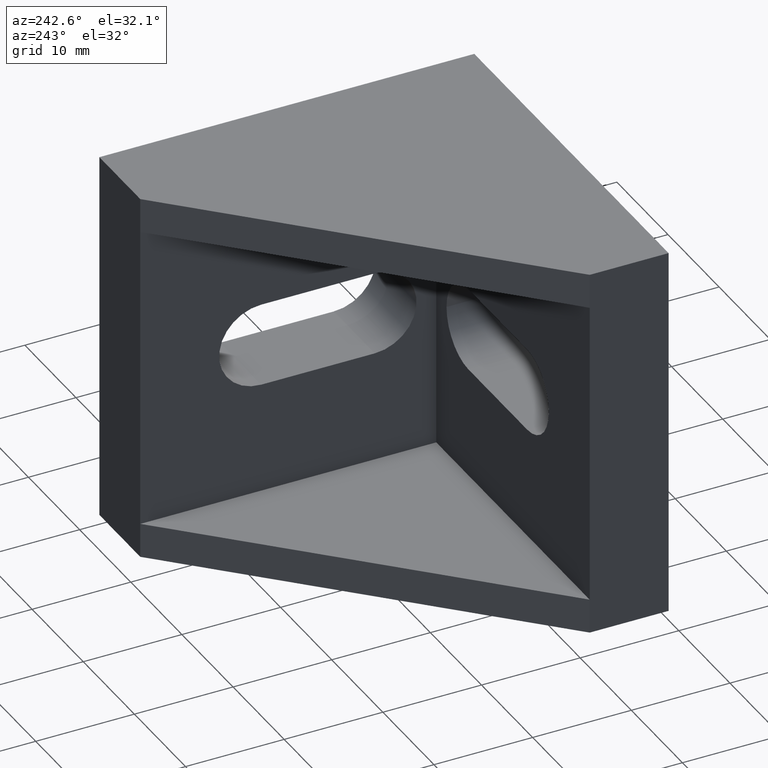
[diagram: clean part render]
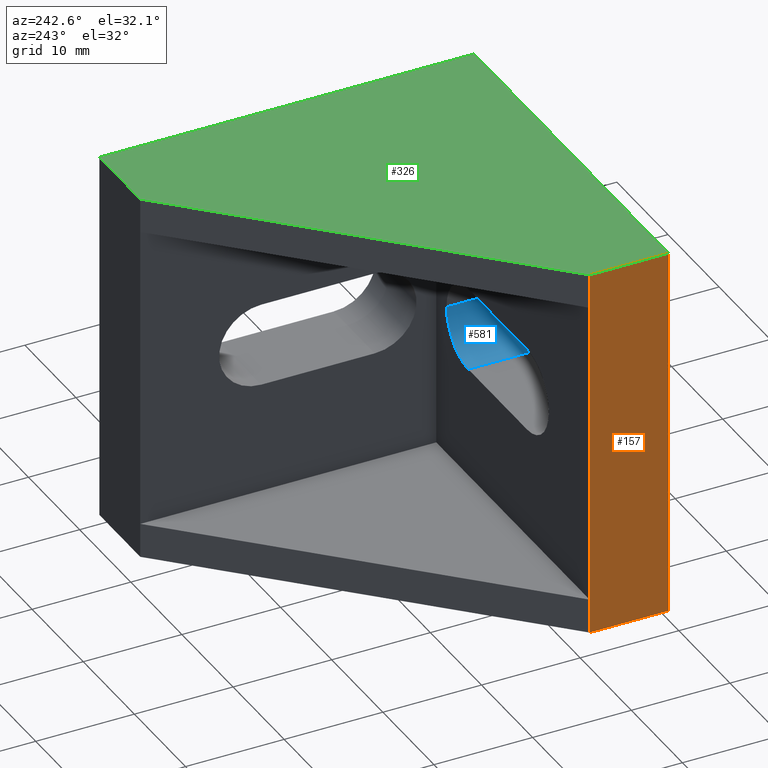
[diagram: same view with three faces highlighted in distinct colors, each labeled with its STEP entity id]
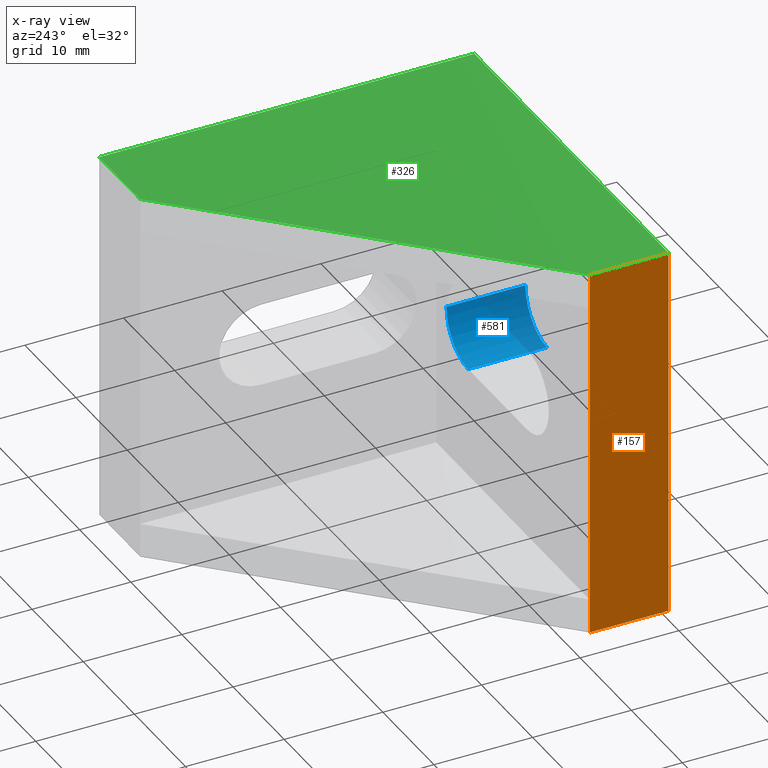
[diagram: x-ray of the same camera — body ghosted, the three highlighted faces saturated]
A machine part, auxiliary view with three faces highlighted in distinct colors.
The next image is the same camera in x-ray (body ghosted, the three faces saturated) — at least one of them is partly hidden behind the body in this view.
Their STEP definitions:

[orange] entity #157 — the highlighted planar face has unit normal (-1, 0, 0).
#63=CARTESIAN_POINT('',(-37.999999999848114,7.999999999967258,-19.0));
#64=VERTEX_POINT('',#63);
#71=CARTESIAN_POINT('',(-37.999999999848114,7.999999999967258,-15.500000000000000));
#72=VERTEX_POINT('',#71);
#73=CARTESIAN_POINT('',(-37.999999999848114,7.999999999967258,-19.0));
#74=DIRECTION('',(0.0,0.0,1.0));
#75=VECTOR('',#74,3.500000000000000);
#76=LINE('',#73,#75);
#77=EDGE_CURVE('',#64,#72,#76,.T.);
#95=CARTESIAN_POINT('',(-37.999999999848114,7.999999999967258,15.500000000000000));
#96=VERTEX_POINT('',#95);
#103=CARTESIAN_POINT('',(-37.999999999848114,7.999999999967258,19.0));
#104=VERTEX_POINT('',#103);
#105=CARTESIAN_POINT('',(-37.999999999848114,7.999999999967258,15.500000000000000));
#106=DIRECTION('',(0.0,0.0,1.0));
#107=VECTOR('',#106,3.500000000000000);
#108=LINE('',#105,#107);
#109=EDGE_CURVE('',#96,#104,#108,.T.);
#120=CARTESIAN_POINT('',(-37.999999999848114,7.999999999967258,-19.0));
#121=DIRECTION('',(-1.0,0.0,0.0));
#122=DIRECTION('',(0.0,-1.0,0.0));
#123=AXIS2_PLACEMENT_3D('',#120,#121,#122);
#124=PLANE('',#123);
#125=CARTESIAN_POINT('',(-37.999999999848114,0.0,-19.0));
#126=VERTEX_POINT('',#125);
#127=CARTESIAN_POINT('',(-37.999999999848114,7.999999999967258,-19.0));
#128=DIRECTION('',(0.0,-1.0,0.0));
#129=VECTOR('',#128,7.999999999967258);
#130=LINE('',#127,#129);
#131=EDGE_CURVE('',#64,#126,#130,.T.);
#132=ORIENTED_EDGE('',*,*,#131,.T.);
#133=CARTESIAN_POINT('',(-37.999999999848114,0.0,19.0));
#134=VERTEX_POINT('',#133);
#135=CARTESIAN_POINT('',(-37.999999999848114,0.0,-19.0));
#136=DIRECTION('',(0.0,0.0,1.0));
#137=VECTOR('',#136,38.0);
#138=LINE('',#135,#137);
#139=EDGE_CURVE('',#126,#134,#138,.T.);
#140=ORIENTED_EDGE('',*,*,#139,.T.);
#141=CARTESIAN_POINT('',(-37.999999999848114,7.999999999967258,19.0));
#142=DIRECTION('',(0.0,-1.0,0.0));
#143=VECTOR('',#142,7.999999999967258);
#144=LINE('',#141,#143);
#145=EDGE_CURVE('',#104,#134,#144,.T.);
#146=ORIENTED_EDGE('',*,*,#145,.F.);
#147=ORIENTED_EDGE('',*,*,#109,.F.);
#148=CARTESIAN_POINT('',(-37.999999999848114,7.999999999967258,-15.500000000000000));
#149=DIRECTION('',(0.0,0.0,1.0));
#150=VECTOR('',#149,31.0);
#151=LINE('',#148,#150);
#152=EDGE_CURVE('',#72,#96,#151,.T.);
#153=ORIENTED_EDGE('',*,*,#152,.F.);
#154=ORIENTED_EDGE('',*,*,#77,.F.);
#155=EDGE_LOOP('',(#132,#140,#146,#147,#153,#154));
#156=FACE_OUTER_BOUND('',#155,.T.);
#157=ADVANCED_FACE('',(#156),#124,.T.);

[blue] entity #581 — the highlighted cylindrical surface (partial cylindrical patch) has radius 4.25 mm, axis along (0, -1, 0).
#188=CARTESIAN_POINT('',(-14.249999999959982,0.0,-4.249999999983624));
#189=VERTEX_POINT('',#188);
#190=CARTESIAN_POINT('',(-9.999999999959982,0.0,1.637631E-011));
#191=VERTEX_POINT('',#190);
#192=CARTESIAN_POINT('',(-14.249999999959982,0.0,1.637623E-011));
#193=DIRECTION('',(0.0,-1.0,0.0));
#194=DIRECTION('',(0.0,0.0,-1.0));
#195=AXIS2_PLACEMENT_3D('',#192,#193,#194);
#196=CIRCLE('',#195,4.250000000000000);
#197=EDGE_CURVE('',#189,#191,#196,.T.);
#415=CARTESIAN_POINT('',(-14.249999999959982,7.999999999967258,-4.249999999983624));
#416=VERTEX_POINT('',#415);
#417=CARTESIAN_POINT('',(-9.999999999959982,7.999999999967258,1.637631E-011));
#418=VERTEX_POINT('',#417);
#419=CARTESIAN_POINT('',(-14.249999999959982,7.999999999967258,1.637623E-011));
#420=DIRECTION('',(0.0,-1.0,0.0));
#421=DIRECTION('',(0.0,0.0,-1.0));
#422=AXIS2_PLACEMENT_3D('',#419,#420,#421);
#423=CIRCLE('',#422,4.250000000000000);
#424=EDGE_CURVE('',#416,#418,#423,.T.);
#560=CARTESIAN_POINT('',(-14.249999999959982,0.0,1.637623E-011));
#561=DIRECTION('',(0.0,-1.0,0.0));
#562=DIRECTION('',(0.0,0.0,-1.0));
#563=AXIS2_PLACEMENT_3D('',#560,#561,#562);
#564=CYLINDRICAL_SURFACE('',#563,4.250000000000000);
#565=CARTESIAN_POINT('',(-9.999999999959982,0.0,1.637631E-011));
#566=DIRECTION('',(0.0,1.0,0.0));
#567=VECTOR('',#566,7.999999999967258);
#568=LINE('',#565,#567);
#569=EDGE_CURVE('',#191,#418,#568,.T.);
#570=ORIENTED_EDGE('',*,*,#569,.T.);
#571=ORIENTED_EDGE('',*,*,#424,.F.);
#572=CARTESIAN_POINT('',(-14.249999999959982,0.0,-4.249999999983624));
#573=DIRECTION('',(0.0,1.0,0.0));
#574=VECTOR('',#573,7.999999999967258);
#575=LINE('',#572,#574);
#576=EDGE_CURVE('',#189,#416,#575,.T.);
#577=ORIENTED_EDGE('',*,*,#576,.F.);
#578=ORIENTED_EDGE('',*,*,#197,.T.);
#579=EDGE_LOOP('',(#570,#571,#577,#578));
#580=FACE_OUTER_BOUND('',#579,.T.);
#581=ADVANCED_FACE('',(#580),#564,.F.);

[green] entity #326 — the highlighted planar face has unit normal (0, 0, 1).
#33=CARTESIAN_POINT('',(-7.999999999968168,37.999999999847205,19.0));
#34=VERTEX_POINT('',#33);
#41=CARTESIAN_POINT('',(0.0,37.999999999847205,19.0));
#42=VERTEX_POINT('',#41);
#43=CARTESIAN_POINT('',(0.0,37.999999999847205,19.0));
#44=DIRECTION('',(-1.0,0.0,0.0));
#45=VECTOR('',#44,7.999999999968168);
#46=LINE('',#43,#45);
#47=EDGE_CURVE('',#42,#34,#46,.T.);
#103=CARTESIAN_POINT('',(-37.999999999848114,7.999999999967258,19.0));
#104=VERTEX_POINT('',#103);
#111=CARTESIAN_POINT('',(-7.999999999968168,37.999999999847205,19.0));
#112=DIRECTION('',(-0.707106781186548,-0.707106781186548,0.0));
#113=VECTOR('',#112,42.426406871023069);
#114=LINE('',#111,#113);
#115=EDGE_CURVE('',#34,#104,#114,.T.);
#133=CARTESIAN_POINT('',(-37.999999999848114,0.0,19.0));
#134=VERTEX_POINT('',#133);
#141=CARTESIAN_POINT('',(-37.999999999848114,7.999999999967258,19.0));
#142=DIRECTION('',(0.0,-1.0,0.0));
#143=VECTOR('',#142,7.999999999967258);
#144=LINE('',#141,#143);
#145=EDGE_CURVE('',#104,#134,#144,.T.);
#171=CARTESIAN_POINT('',(0.0,0.0,19.0));
#172=VERTEX_POINT('',#171);
#179=CARTESIAN_POINT('',(-37.999999999848114,0.0,19.0));
#180=DIRECTION('',(1.0,0.0,0.0));
#181=VECTOR('',#180,37.999999999848114);
#182=LINE('',#179,#181);
#183=EDGE_CURVE('',#134,#172,#182,.T.);
#249=CARTESIAN_POINT('',(0.0,0.0,19.0));
#250=DIRECTION('',(0.0,1.0,0.0));
#251=VECTOR('',#250,37.999999999848114);
#252=LINE('',#249,#251);
#253=EDGE_CURVE('',#172,#42,#252,.T.);
#314=CARTESIAN_POINT('',(-41.800004740979603,-3.800004741223347,19.0));
#315=DIRECTION('',(0.0,0.0,1.0));
#316=DIRECTION('',(1.0,0.0,0.0));
#317=AXIS2_PLACEMENT_3D('',#314,#315,#316);
#318=PLANE('',#317);
#319=ORIENTED_EDGE('',*,*,#47,.T.);
#320=ORIENTED_EDGE('',*,*,#115,.T.);
#321=ORIENTED_EDGE('',*,*,#145,.T.);
#322=ORIENTED_EDGE('',*,*,#183,.T.);
#323=ORIENTED_EDGE('',*,*,#253,.T.);
#324=EDGE_LOOP('',(#319,#320,#321,#322,#323));
#325=FACE_OUTER_BOUND('',#324,.T.);
#326=ADVANCED_FACE('',(#325),#318,.T.);